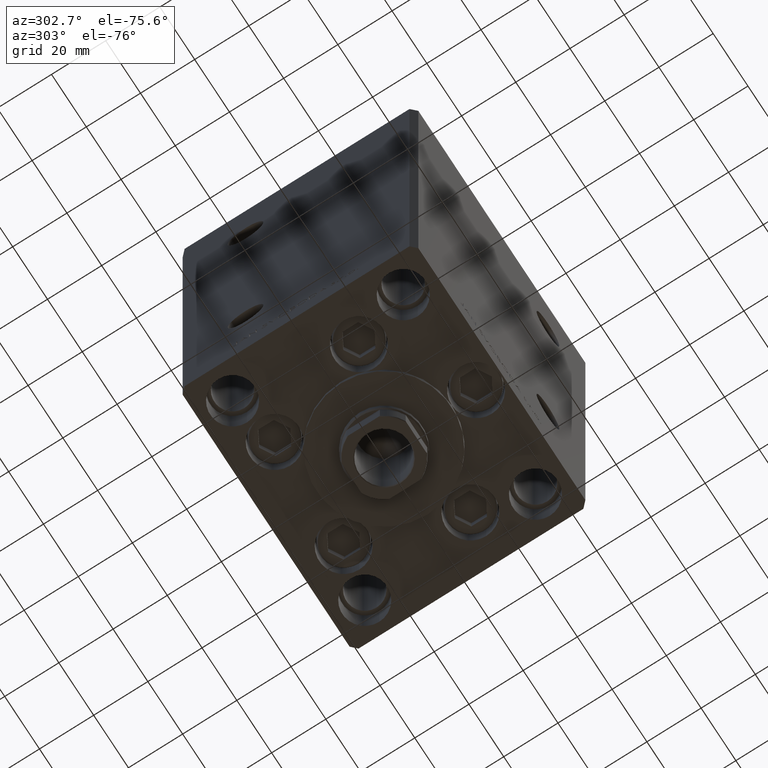
[diagram: clean part render]
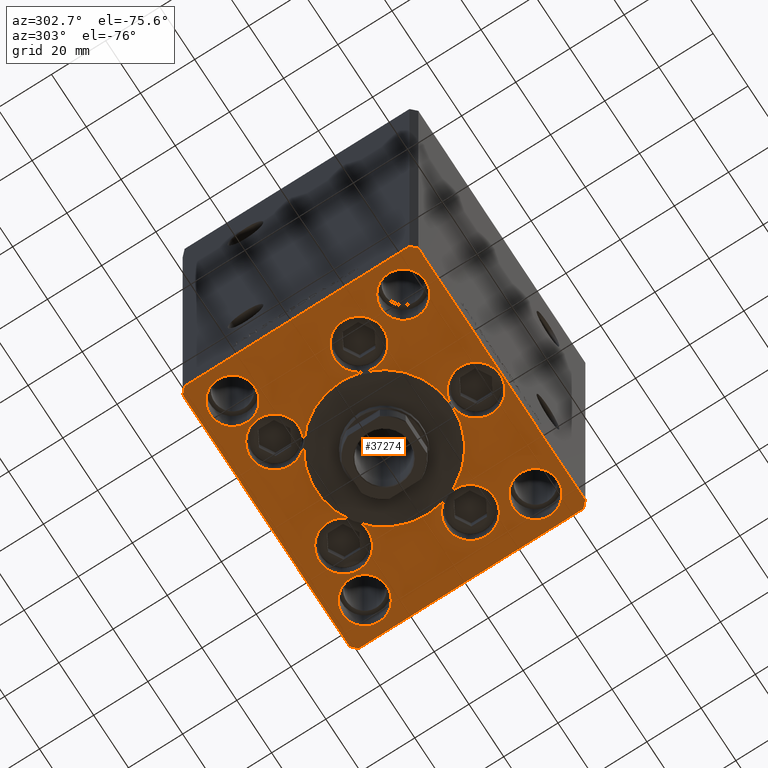
[diagram: same view with one face highlighted and labeled with its STEP entity id]
A machine part, auxiliary view. The second image highlights one B-rep face of the part: STEP entity #37274.
In plain terms, the highlighted planar face has unit normal (0, 0, -1).
Its self-contained STEP definition (entity closure, byte-faithful):
#30 = DIRECTION ( 'NONE',  ( 1.000000000000000000, 0.000000000000000000, 0.000000000000000000 ) ) ;
#83 = CIRCLE ( 'NONE', #13821, 25.00000000000000000 ) ;
#269 = CARTESIAN_POINT ( 'NONE',  ( -28.82068048781374969, 27.62499999999998934, 0.000000000000000000 ) ) ;
#766 = EDGE_CURVE ( 'NONE', #37316, #34012, #29803, .T. ) ;
#796 = CARTESIAN_POINT ( 'NONE',  ( 46.25000000000000000, 31.50000000000000000, 0.000000000000000000 ) ) ;
#1081 = VERTEX_POINT ( 'NONE', #43138 ) ;
#1189 = AXIS2_PLACEMENT_3D ( 'NONE', #8312, #4749, #8806 ) ;
#1404 = AXIS2_PLACEMENT_3D ( 'NONE', #15653, #3745, #35247 ) ;
#1420 = EDGE_CURVE ( 'NONE', #1081, #26979, #18150, .T. ) ;
#1479 = DIRECTION ( 'NONE',  ( 0.000000000000000000, 0.000000000000000000, 1.000000000000000000 ) ) ;
#1487 = CARTESIAN_POINT ( 'NONE',  ( -9.000000000000000000, -34.00000000000000000, 0.000000000000000000 ) ) ;
#1518 = EDGE_CURVE ( 'NONE', #36412, #4399, #11531, .T. ) ;
#1617 = ORIENTED_EDGE ( 'NONE', *, *, #5582, .F. ) ;
#1656 = DIRECTION ( 'NONE',  ( 0.000000000000000000, 0.000000000000000000, 1.000000000000000000 ) ) ;
#1922 = DIRECTION ( 'NONE',  ( -0.7071067811865536790, -0.7071067811865414665, 0.000000000000000000 ) ) ;
#2026 = CIRCLE ( 'NONE', #37715, 9.000000000000001776 ) ;
#2080 = DIRECTION ( 'NONE',  ( 1.000000000000000000, 0.000000000000000000, 0.000000000000000000 ) ) ;
#2179 = DIRECTION ( 'NONE',  ( 1.000000000000000000, 0.000000000000000000, 0.000000000000000000 ) ) ;
#2265 = CARTESIAN_POINT ( 'NONE',  ( -48.00000000000000000, 43.49999999999997158, 0.000000000000000000 ) ) ;
#2281 = EDGE_CURVE ( 'NONE', #42378, #2754, #37145, .T. ) ;
#2652 = ORIENTED_EDGE ( 'NONE', *, *, #22180, .F. ) ;
#2754 = VERTEX_POINT ( 'NONE', #14559 ) ;
#2789 = DIRECTION ( 'NONE',  ( 1.000000000000000000, 0.000000000000000000, 0.000000000000000000 ) ) ;
#2797 = AXIS2_PLACEMENT_3D ( 'NONE', #43185, #19555, #46756 ) ;
#3745 = DIRECTION ( 'NONE',  ( 0.000000000000000000, 0.000000000000000000, 1.000000000000000000 ) ) ;
#3759 = DIRECTION ( 'NONE',  ( 1.000000000000000000, 0.000000000000000000, 0.000000000000000000 ) ) ;
#3940 = CARTESIAN_POINT ( 'NONE',  ( -38.00000000000000711, -31.50000000000000711, 0.000000000000000000 ) ) ;
#4189 = VERTEX_POINT ( 'NONE', #32038 ) ;
#4246 = CARTESIAN_POINT ( 'NONE',  ( 0.000000000000000000, -6.938893903907228378E-15, 0.000000000000000000 ) ) ;
#4399 = VERTEX_POINT ( 'NONE', #19603 ) ;
#4632 = ORIENTED_EDGE ( 'NONE', *, *, #31259, .T. ) ;
#4666 = VERTEX_POINT ( 'NONE', #269 ) ;
#4749 = DIRECTION ( 'NONE',  ( 0.000000000000000000, 0.000000000000000000, 1.000000000000000000 ) ) ;
#4993 = AXIS2_PLACEMENT_3D ( 'NONE', #14218, #7366, #45984 ) ;
#5022 = VERTEX_POINT ( 'NONE', #20231 ) ;
#5319 = ORIENTED_EDGE ( 'NONE', *, *, #1420, .T. ) ;
#5325 = VERTEX_POINT ( 'NONE', #29015 ) ;
#5414 = EDGE_CURVE ( 'NONE', #28683, #7778, #42097, .T. ) ;
#5582 = EDGE_CURVE ( 'NONE', #6333, #33565, #23469, .T. ) ;
#5743 = CARTESIAN_POINT ( 'NONE',  ( -14.57402977045128978, 20.31249999999999289, 0.000000000000000000 ) ) ;
#5789 = VECTOR ( 'NONE', #44414, 1000.000000000000000 ) ;
#5919 = VERTEX_POINT ( 'NONE', #11626 ) ;
#6028 = AXIS2_PLACEMENT_3D ( 'NONE', #11643, #18517, #2789 ) ;
#6181 = ORIENTED_EDGE ( 'NONE', *, *, #42229, .F. ) ;
#6254 = EDGE_CURVE ( 'NONE', #7404, #15805, #38880, .T. ) ;
#6282 = CIRCLE ( 'NONE', #1404, 9.000000000000001776 ) ;
#6333 = VERTEX_POINT ( 'NONE', #25263 ) ;
#7010 = ORIENTED_EDGE ( 'NONE', *, *, #38161, .F. ) ;
#7366 = DIRECTION ( 'NONE',  ( 0.000000000000000000, 0.000000000000000000, 1.000000000000000000 ) ) ;
#7404 = VERTEX_POINT ( 'NONE', #1487 ) ;
#7778 = VERTEX_POINT ( 'NONE', #15280 ) ;
#8001 = CARTESIAN_POINT ( 'NONE',  ( -41.05550741379015989, -11.33333333333332682, 0.000000000000000000 ) ) ;
#8056 = DIRECTION ( 'NONE',  ( -0.000000000000000000, 0.000000000000000000, 1.000000000000000000 ) ) ;
#8092 = CARTESIAN_POINT ( 'NONE',  ( 10.82068048781375147, 27.62499999999998934, 0.000000000000000000 ) ) ;
#8105 = ORIENTED_EDGE ( 'NONE', *, *, #766, .F. ) ;
#8312 = CARTESIAN_POINT ( 'NONE',  ( 0.000000000000000000, -6.938893903907228378E-15, 0.000000000000000000 ) ) ;
#8509 = CIRCLE ( 'NONE', #28847, 9.000000000000001776 ) ;
#8575 = EDGE_CURVE ( 'NONE', #2754, #28466, #34120, .T. ) ;
#8684 = DIRECTION ( 'NONE',  ( 1.000000000000000000, 0.000000000000000000, 0.000000000000000000 ) ) ;
#8688 = VERTEX_POINT ( 'NONE', #17650 ) ;
#8764 = CARTESIAN_POINT ( 'NONE',  ( 47.99999999999999289, 43.50000000000000000, 0.000000000000000000 ) ) ;
#8796 = EDGE_CURVE ( 'NONE', #4189, #5325, #29287, .T. ) ;
#8806 = DIRECTION ( 'NONE',  ( 1.000000000000000000, 0.000000000000000000, 0.000000000000000000 ) ) ;
#9032 = DIRECTION ( 'NONE',  ( 0.000000000000000000, 0.000000000000000000, 1.000000000000000000 ) ) ;
#9120 = DIRECTION ( 'NONE',  ( 0.000000000000000000, 0.000000000000000000, 1.000000000000000000 ) ) ;
#9375 = CARTESIAN_POINT ( 'NONE',  ( 19.82068048781374969, 27.62499999999998934, 0.000000000000000000 ) ) ;
#9772 = CARTESIAN_POINT ( 'NONE',  ( -48.00000000000000000, 43.49999999999997158, 0.000000000000000000 ) ) ;
#10020 = DIRECTION ( 'NONE',  ( 1.000000000000000000, 0.000000000000000000, 0.000000000000000000 ) ) ;
#10934 = DIRECTION ( 'NONE',  ( 1.000000000000000000, 0.000000000000000000, 0.000000000000000000 ) ) ;
#11009 = CIRCLE ( 'NONE', #23892, 8.250000000000000000 ) ;
#11332 = ORIENTED_EDGE ( 'NONE', *, *, #21305, .F. ) ;
#11531 = LINE ( 'NONE', #47081, #45234 ) ;
#11626 = CARTESIAN_POINT ( 'NONE',  ( 25.00000000000000000, -3.877276906038844941E-15, 0.000000000000000000 ) ) ;
#11643 = CARTESIAN_POINT ( 'NONE',  ( 0.000000000000000000, -6.938893903907228378E-15, 0.000000000000000000 ) ) ;
#12031 = CARTESIAN_POINT ( 'NONE',  ( 38.00000000000000000, 31.50000000000000000, 0.000000000000000000 ) ) ;
#12063 = EDGE_LOOP ( 'NONE', ( #24391, #42480 ) ) ;
#12237 = CARTESIAN_POINT ( 'NONE',  ( 0.000000000000000000, -6.938893903907228378E-15, 0.000000000000000000 ) ) ;
#12612 = EDGE_CURVE ( 'NONE', #28466, #5919, #13825, .T. ) ;
#12825 = DIRECTION ( 'NONE',  ( 0.000000000000000000, 0.000000000000000000, 1.000000000000000000 ) ) ;
#12863 = CARTESIAN_POINT ( 'NONE',  ( 28.82068048781374969, 27.62499999999998934, 0.000000000000000000 ) ) ;
#12979 = CARTESIAN_POINT ( 'NONE',  ( 38.00000000000000711, -31.50000000000000711, 0.000000000000000000 ) ) ;
#13226 = DIRECTION ( 'NONE',  ( 0.000000000000000000, 0.000000000000000000, 1.000000000000000000 ) ) ;
#13560 = CARTESIAN_POINT ( 'NONE',  ( 0.000000000000000000, -6.938893903907228378E-15, 0.000000000000000000 ) ) ;
#13793 = DIRECTION ( 'NONE',  ( 0.000000000000000000, 0.000000000000000000, 1.000000000000000000 ) ) ;
#13821 = AXIS2_PLACEMENT_3D ( 'NONE', #13560, #1656, #40498 ) ;
#13823 = LINE ( 'NONE', #9772, #32540 ) ;
#13825 = CIRCLE ( 'NONE', #27649, 25.00000000000000000 ) ;
#14208 = ORIENTED_EDGE ( 'NONE', *, *, #23958, .F. ) ;
#14218 = CARTESIAN_POINT ( 'NONE',  ( 0.000000000000000000, -34.00000000000000000, 0.000000000000000000 ) ) ;
#14279 = CARTESIAN_POINT ( 'NONE',  ( 14.57402977045128623, 20.31249999999998579, 0.000000000000000000 ) ) ;
#14452 = ORIENTED_EDGE ( 'NONE', *, *, #1518, .T. ) ;
#14527 = AXIS2_PLACEMENT_3D ( 'NONE', #47370, #47619, #31901 ) ;
#14559 = CARTESIAN_POINT ( 'NONE',  ( 0.000000000000000000, -25.00000000000000000, 0.000000000000000000 ) ) ;
#14644 = EDGE_CURVE ( 'NONE', #5022, #36412, #36899, .T. ) ;
#14870 = CARTESIAN_POINT ( 'NONE',  ( -46.25000000000000000, 31.50000000000000000, 0.000000000000000000 ) ) ;
#14881 = LINE ( 'NONE', #49943, #43182 ) ;
#15091 = DIRECTION ( 'NONE',  ( 1.000000000000000000, 0.000000000000000000, 0.000000000000000000 ) ) ;
#15104 = CARTESIAN_POINT ( 'NONE',  ( 9.000000000000000000, -34.00000000000000000, 0.000000000000000000 ) ) ;
#15280 = CARTESIAN_POINT ( 'NONE',  ( 46.25000000000000000, -31.50000000000000711, 0.000000000000000000 ) ) ;
#15331 = EDGE_CURVE ( 'NONE', #26979, #5022, #25636, .T. ) ;
#15653 = CARTESIAN_POINT ( 'NONE',  ( 32.05550741379015989, -11.33333333333332860, 0.000000000000000000 ) ) ;
#15805 = VERTEX_POINT ( 'NONE', #15104 ) ;
#15843 = EDGE_CURVE ( 'NONE', #35532, #24311, #41521, .T. ) ;
#15941 = DIRECTION ( 'NONE',  ( 0.000000000000000000, 0.000000000000000000, 1.000000000000000000 ) ) ;
#16088 = ORIENTED_EDGE ( 'NONE', *, *, #15331, .T. ) ;
#16356 = DIRECTION ( 'NONE',  ( 0.000000000000000000, 0.000000000000000000, 1.000000000000000000 ) ) ;
#16438 = CIRCLE ( 'NONE', #24552, 9.000000000000000000 ) ;
#16486 = DIRECTION ( 'NONE',  ( 0.000000000000000000, 0.000000000000000000, 1.000000000000000000 ) ) ;
#16581 = CARTESIAN_POINT ( 'NONE',  ( 19.82068048781374969, 27.62499999999998934, 0.000000000000000000 ) ) ;
#16634 = CARTESIAN_POINT ( 'NONE',  ( 38.00000000000000000, 31.50000000000000000, 0.000000000000000000 ) ) ;
#16869 = ORIENTED_EDGE ( 'NONE', *, *, #21077, .F. ) ;
#17073 = DIRECTION ( 'NONE',  ( 0.000000000000000000, 0.000000000000000000, 1.000000000000000000 ) ) ;
#17560 = EDGE_CURVE ( 'NONE', #4399, #31655, #14881, .T. ) ;
#17650 = CARTESIAN_POINT ( 'NONE',  ( -25.00000000000000000, -6.938893903907228378E-15, 0.000000000000000000 ) ) ;
#17687 = CARTESIAN_POINT ( 'NONE',  ( -23.57022603955158502, -8.333333333333332149, 0.000000000000000000 ) ) ;
#18081 = CIRCLE ( 'NONE', #35124, 9.000000000000000000 ) ;
#18150 = LINE ( 'NONE', #18402, #29844 ) ;
#18268 = AXIS2_PLACEMENT_3D ( 'NONE', #22200, #13793, #26277 ) ;
#18274 = ORIENTED_EDGE ( 'NONE', *, *, #17560, .T. ) ;
#18384 = EDGE_CURVE ( 'NONE', #40203, #44998, #18081, .T. ) ;
#18402 = CARTESIAN_POINT ( 'NONE',  ( -50.00000000000000711, 41.49999999999999289, 0.000000000000000000 ) ) ;
#18517 = DIRECTION ( 'NONE',  ( 0.000000000000000000, 0.000000000000000000, 1.000000000000000000 ) ) ;
#18557 = EDGE_CURVE ( 'NONE', #44998, #4666, #16438, .T. ) ;
#18561 = ORIENTED_EDGE ( 'NONE', *, *, #48841, .F. ) ;
#18589 = DIRECTION ( 'NONE',  ( -0.7071067811865512365, 0.7071067811865439090, 0.000000000000000000 ) ) ;
#18972 = AXIS2_PLACEMENT_3D ( 'NONE', #43110, #8056, #3759 ) ;
#19495 = AXIS2_PLACEMENT_3D ( 'NONE', #3940, #20418, #31881 ) ;
#19555 = DIRECTION ( 'NONE',  ( 0.000000000000000000, 0.000000000000000000, 1.000000000000000000 ) ) ;
#19603 = CARTESIAN_POINT ( 'NONE',  ( 50.00000000000000000, -41.49999999999992895, 0.000000000000000000 ) ) ;
#19663 = CIRCLE ( 'NONE', #39953, 9.000000000000000000 ) ;
#19931 = CARTESIAN_POINT ( 'NONE',  ( -38.00000000000000000, 31.50000000000000000, 0.000000000000000000 ) ) ;
#19950 = ORIENTED_EDGE ( 'NONE', *, *, #8796, .F. ) ;
#20007 = CARTESIAN_POINT ( 'NONE',  ( -32.05550741379015989, -11.33333333333332860, 0.000000000000000000 ) ) ;
#20061 = CARTESIAN_POINT ( 'NONE',  ( -38.00000000000000000, 31.50000000000000000, 0.000000000000000000 ) ) ;
#20193 = AXIS2_PLACEMENT_3D ( 'NONE', #48046, #13226, #2080 ) ;
#20231 = CARTESIAN_POINT ( 'NONE',  ( -48.00000000000000711, -43.50000000000002842, 0.000000000000000000 ) ) ;
#20418 = DIRECTION ( 'NONE',  ( 0.000000000000000000, 0.000000000000000000, 1.000000000000000000 ) ) ;
#20441 = AXIS2_PLACEMENT_3D ( 'NONE', #30894, #46367, #23757 ) ;
#20518 = DIRECTION ( 'NONE',  ( 1.000000000000000000, 0.000000000000000000, 0.000000000000000000 ) ) ;
#20694 = CIRCLE ( 'NONE', #18268, 8.250000000000000000 ) ;
#21077 = EDGE_CURVE ( 'NONE', #2754, #7404, #36017, .T. ) ;
#21305 = EDGE_CURVE ( 'NONE', #24311, #34204, #25462, .T. ) ;
#21882 = EDGE_LOOP ( 'NONE', ( #50232, #25145, #11332, #26973, #41318, #35876, #14208, #1617, #18561, #37077, #38224, #33850, #16869, #26350, #38756, #7010, #43704, #33481, #6181, #23820, #38301, #36889 ) ) ;
#22134 = CARTESIAN_POINT ( 'NONE',  ( -10.82068048781375147, 27.62499999999998934, 0.000000000000000000 ) ) ;
#22180 = EDGE_CURVE ( 'NONE', #34012, #37316, #49821, .T. ) ;
#22200 = CARTESIAN_POINT ( 'NONE',  ( -38.00000000000000711, -31.50000000000000711, 0.000000000000000000 ) ) ;
#22501 = DIRECTION ( 'NONE',  ( 1.000000000000000000, 0.000000000000000000, 0.000000000000000000 ) ) ;
#23063 = FACE_BOUND ( 'NONE', #35323, .T. ) ;
#23172 = AXIS2_PLACEMENT_3D ( 'NONE', #19931, #16356, #31895 ) ;
#23276 = DIRECTION ( 'NONE',  ( -1.000000000000000000, -2.891205793294678326E-16, 0.000000000000000000 ) ) ;
#23469 = CIRCLE ( 'NONE', #24301, 9.000000000000001776 ) ;
#23472 = DIRECTION ( 'NONE',  ( 0.7071067811865474617, 0.7071067811865474617, 0.000000000000000000 ) ) ;
#23711 = EDGE_CURVE ( 'NONE', #5325, #4189, #20694, .T. ) ;
#23757 = DIRECTION ( 'NONE',  ( 1.000000000000000000, 0.000000000000000000, 0.000000000000000000 ) ) ;
#23820 = ORIENTED_EDGE ( 'NONE', *, *, #34302, .F. ) ;
#23892 = AXIS2_PLACEMENT_3D ( 'NONE', #20061, #16486, #35583 ) ;
#23958 = EDGE_CURVE ( 'NONE', #33565, #28466, #8509, .T. ) ;
#24301 = AXIS2_PLACEMENT_3D ( 'NONE', #35088, #46989, #30 ) ;
#24311 = VERTEX_POINT ( 'NONE', #12863 ) ;
#24391 = ORIENTED_EDGE ( 'NONE', *, *, #40791, .F. ) ;
#24546 = DIRECTION ( 'NONE',  ( 1.000000000000000000, 0.000000000000000000, 0.000000000000000000 ) ) ;
#24552 = AXIS2_PLACEMENT_3D ( 'NONE', #33179, #29624, #2179 ) ;
#25145 = ORIENTED_EDGE ( 'NONE', *, *, #45182, .F. ) ;
#25185 = CARTESIAN_POINT ( 'NONE',  ( 0.000000000000000000, -6.938893903907228378E-15, 0.000000000000000000 ) ) ;
#25263 = CARTESIAN_POINT ( 'NONE',  ( 23.05550741379015633, -11.33333333333332682, 0.000000000000000000 ) ) ;
#25462 = CIRCLE ( 'NONE', #38437, 8.999999999999998224 ) ;
#25465 = DIRECTION ( 'NONE',  ( 1.000000000000000000, 1.156482317317871331E-15, 0.000000000000000000 ) ) ;
#25604 = CIRCLE ( 'NONE', #36981, 8.999999999999998224 ) ;
#25607 = AXIS2_PLACEMENT_3D ( 'NONE', #12979, #35641, #8684 ) ;
#25636 = LINE ( 'NONE', #32752, #5789 ) ;
#25706 = DIRECTION ( 'NONE',  ( 0.000000000000000000, 0.000000000000000000, 1.000000000000000000 ) ) ;
#25801 = DIRECTION ( 'NONE',  ( 8.360113137237620037E-17, -1.000000000000000000, 0.000000000000000000 ) ) ;
#26012 = CIRCLE ( 'NONE', #4993, 9.000000000000000000 ) ;
#26247 = LINE ( 'NONE', #30312, #42266 ) ;
#26277 = DIRECTION ( 'NONE',  ( 1.000000000000000000, 0.000000000000000000, 0.000000000000000000 ) ) ;
#26350 = ORIENTED_EDGE ( 'NONE', *, *, #2281, .F. ) ;
#26367 = VECTOR ( 'NONE', #23276, 1000.000000000000000 ) ;
#26640 = AXIS2_PLACEMENT_3D ( 'NONE', #25185, #44243, #48295 ) ;
#26750 = EDGE_CURVE ( 'NONE', #48003, #1081, #13823, .T. ) ;
#26973 = ORIENTED_EDGE ( 'NONE', *, *, #15843, .F. ) ;
#26979 = VERTEX_POINT ( 'NONE', #39968 ) ;
#27191 = CARTESIAN_POINT ( 'NONE',  ( 50.00000000000000000, 41.50000000000000711, 0.000000000000000000 ) ) ;
#27385 = FACE_BOUND ( 'NONE', #40281, .T. ) ;
#27649 = AXIS2_PLACEMENT_3D ( 'NONE', #49920, #46617, #22501 ) ;
#27931 = AXIS2_PLACEMENT_3D ( 'NONE', #34331, #49796, #10934 ) ;
#28268 = EDGE_CURVE ( 'NONE', #15805, #2754, #26012, .T. ) ;
#28368 = DIRECTION ( 'NONE',  ( 1.000000000000000000, 0.000000000000000000, 0.000000000000000000 ) ) ;
#28466 = VERTEX_POINT ( 'NONE', #40339 ) ;
#28683 = VERTEX_POINT ( 'NONE', #35253 ) ;
#28847 = AXIS2_PLACEMENT_3D ( 'NONE', #33851, #25706, #49065 ) ;
#29015 = CARTESIAN_POINT ( 'NONE',  ( -29.75000000000000711, -31.50000000000000711, 0.000000000000000000 ) ) ;
#29190 = EDGE_CURVE ( 'NONE', #35532, #40203, #83, .T. ) ;
#29287 = CIRCLE ( 'NONE', #19495, 8.250000000000000000 ) ;
#29624 = DIRECTION ( 'NONE',  ( 0.000000000000000000, 0.000000000000000000, 1.000000000000000000 ) ) ;
#29803 = CIRCLE ( 'NONE', #41959, 8.250000000000000000 ) ;
#29844 = VECTOR ( 'NONE', #25801, 1000.000000000000000 ) ;
#30312 = CARTESIAN_POINT ( 'NONE',  ( 50.00000000000000000, 41.50000000000000711, 0.000000000000000000 ) ) ;
#30460 = ORIENTED_EDGE ( 'NONE', *, *, #42561, .T. ) ;
#30894 = CARTESIAN_POINT ( 'NONE',  ( 19.82068048781374969, 27.62499999999998934, 0.000000000000000000 ) ) ;
#31259 = EDGE_CURVE ( 'NONE', #31655, #45393, #26247, .T. ) ;
#31624 = DIRECTION ( 'NONE',  ( 0.000000000000000000, 0.000000000000000000, 1.000000000000000000 ) ) ;
#31655 = VERTEX_POINT ( 'NONE', #27191 ) ;
#31836 = DIRECTION ( 'NONE',  ( 1.000000000000000000, 0.000000000000000000, 0.000000000000000000 ) ) ;
#31869 = DIRECTION ( 'NONE',  ( 1.000000000000000000, 0.000000000000000000, 0.000000000000000000 ) ) ;
#31881 = DIRECTION ( 'NONE',  ( 1.000000000000000000, 0.000000000000000000, 0.000000000000000000 ) ) ;
#31895 = DIRECTION ( 'NONE',  ( 1.000000000000000000, 0.000000000000000000, 0.000000000000000000 ) ) ;
#31901 = DIRECTION ( 'NONE',  ( 1.000000000000000000, 0.000000000000000000, 0.000000000000000000 ) ) ;
#32038 = CARTESIAN_POINT ( 'NONE',  ( -46.25000000000000711, -31.50000000000000711, 0.000000000000000000 ) ) ;
#32168 = DIRECTION ( 'NONE',  ( 0.000000000000000000, 0.000000000000000000, 1.000000000000000000 ) ) ;
#32386 = PLANE ( 'NONE',  #18972 ) ;
#32540 = VECTOR ( 'NONE', #1922, 1000.000000000000000 ) ;
#32624 = CARTESIAN_POINT ( 'NONE',  ( 48.00000000000000711, -43.49999999999992184, 0.000000000000000000 ) ) ;
#32752 = CARTESIAN_POINT ( 'NONE',  ( -50.00000000000000000, -41.50000000000004263, 0.000000000000000000 ) ) ;
#33179 = CARTESIAN_POINT ( 'NONE',  ( -19.82068048781374969, 27.62499999999998934, 0.000000000000000000 ) ) ;
#33481 = ORIENTED_EDGE ( 'NONE', *, *, #37791, .F. ) ;
#33565 = VERTEX_POINT ( 'NONE', #49213 ) ;
#33639 = CIRCLE ( 'NONE', #1189, 25.00000000000000000 ) ;
#33850 = ORIENTED_EDGE ( 'NONE', *, *, #6254, .F. ) ;
#33851 = CARTESIAN_POINT ( 'NONE',  ( 32.05550741379015989, -11.33333333333332860, 0.000000000000000000 ) ) ;
#34012 = VERTEX_POINT ( 'NONE', #796 ) ;
#34120 = CIRCLE ( 'NONE', #40560, 25.00000000000000000 ) ;
#34204 = VERTEX_POINT ( 'NONE', #8092 ) ;
#34302 = EDGE_CURVE ( 'NONE', #4666, #40203, #19663, .T. ) ;
#34331 = CARTESIAN_POINT ( 'NONE',  ( -32.05550741379015989, -11.33333333333332860, 0.000000000000000000 ) ) ;
#34764 = ORIENTED_EDGE ( 'NONE', *, *, #23711, .F. ) ;
#35088 = CARTESIAN_POINT ( 'NONE',  ( 32.05550741379015989, -11.33333333333332860, 0.000000000000000000 ) ) ;
#35124 = AXIS2_PLACEMENT_3D ( 'NONE', #47645, #12825, #28368 ) ;
#35247 = DIRECTION ( 'NONE',  ( 1.000000000000000000, 0.000000000000000000, 0.000000000000000000 ) ) ;
#35253 = CARTESIAN_POINT ( 'NONE',  ( 29.75000000000001066, -31.50000000000000711, 0.000000000000000000 ) ) ;
#35323 = EDGE_LOOP ( 'NONE', ( #34764, #19950 ) ) ;
#35529 = DIRECTION ( 'NONE',  ( 1.000000000000000000, 0.000000000000000000, 0.000000000000000000 ) ) ;
#35532 = VERTEX_POINT ( 'NONE', #14279 ) ;
#35583 = DIRECTION ( 'NONE',  ( 1.000000000000000000, 0.000000000000000000, 0.000000000000000000 ) ) ;
#35641 = DIRECTION ( 'NONE',  ( 0.000000000000000000, 0.000000000000000000, 1.000000000000000000 ) ) ;
#35797 = VECTOR ( 'NONE', #25465, 1000.000000000000000 ) ;
#35876 = ORIENTED_EDGE ( 'NONE', *, *, #12612, .F. ) ;
#35983 = CARTESIAN_POINT ( 'NONE',  ( 0.000000000000000000, -34.00000000000000000, 0.000000000000000000 ) ) ;
#36017 = CIRCLE ( 'NONE', #44924, 9.000000000000000000 ) ;
#36412 = VERTEX_POINT ( 'NONE', #32624 ) ;
#36716 = CARTESIAN_POINT ( 'NONE',  ( -29.75000000000000000, 31.50000000000000000, 0.000000000000000000 ) ) ;
#36803 = EDGE_CURVE ( 'NONE', #40065, #42378, #42486, .T. ) ;
#36889 = ORIENTED_EDGE ( 'NONE', *, *, #18384, .F. ) ;
#36899 = LINE ( 'NONE', #48569, #35797 ) ;
#36953 = CIRCLE ( 'NONE', #25607, 8.249999999999992895 ) ;
#36981 = AXIS2_PLACEMENT_3D ( 'NONE', #9375, #9120, #44183 ) ;
#37077 = ORIENTED_EDGE ( 'NONE', *, *, #8575, .F. ) ;
#37145 = CIRCLE ( 'NONE', #26640, 25.00000000000000000 ) ;
#37274 = ADVANCED_FACE ( 'NONE', ( #46923, #27385, #42857, #23063, #47852, #38554 ), #32386, .T. ) ;
#37316 = VERTEX_POINT ( 'NONE', #49123 ) ;
#37715 = AXIS2_PLACEMENT_3D ( 'NONE', #20007, #15941, #35529 ) ;
#37791 = EDGE_CURVE ( 'NONE', #8688, #42378, #33639, .T. ) ;
#37957 = EDGE_CURVE ( 'NONE', #5919, #35532, #39293, .T. ) ;
#38161 = EDGE_CURVE ( 'NONE', #40309, #40065, #45797, .T. ) ;
#38224 = ORIENTED_EDGE ( 'NONE', *, *, #28268, .F. ) ;
#38301 = ORIENTED_EDGE ( 'NONE', *, *, #18557, .F. ) ;
#38437 = AXIS2_PLACEMENT_3D ( 'NONE', #16581, #17073, #31869 ) ;
#38554 = FACE_OUTER_BOUND ( 'NONE', #40618, .T. ) ;
#38564 = CARTESIAN_POINT ( 'NONE',  ( 47.99999999999999289, 43.50000000000000000, 0.000000000000000000 ) ) ;
#38578 = CIRCLE ( 'NONE', #23172, 8.250000000000000000 ) ;
#38756 = ORIENTED_EDGE ( 'NONE', *, *, #36803, .F. ) ;
#38880 = CIRCLE ( 'NONE', #14527, 9.000000000000000000 ) ;
#39039 = DIRECTION ( 'NONE',  ( 0.000000000000000000, 0.000000000000000000, 1.000000000000000000 ) ) ;
#39203 = EDGE_CURVE ( 'NONE', #42378, #40309, #2026, .T. ) ;
#39293 = CIRCLE ( 'NONE', #44156, 25.00000000000000000 ) ;
#39569 = VERTEX_POINT ( 'NONE', #36716 ) ;
#39953 = AXIS2_PLACEMENT_3D ( 'NONE', #43647, #1479, #20518 ) ;
#39968 = CARTESIAN_POINT ( 'NONE',  ( -50.00000000000000000, -41.50000000000004263, 0.000000000000000000 ) ) ;
#40065 = VERTEX_POINT ( 'NONE', #49831 ) ;
#40203 = VERTEX_POINT ( 'NONE', #5743 ) ;
#40281 = EDGE_LOOP ( 'NONE', ( #2652, #8105 ) ) ;
#40309 = VERTEX_POINT ( 'NONE', #8001 ) ;
#40339 = CARTESIAN_POINT ( 'NONE',  ( 23.57022603955158502, -8.333333333333332149, 0.000000000000000000 ) ) ;
#40498 = DIRECTION ( 'NONE',  ( 1.000000000000000000, 0.000000000000000000, 0.000000000000000000 ) ) ;
#40506 = EDGE_CURVE ( 'NONE', #48373, #39569, #38578, .T. ) ;
#40560 = AXIS2_PLACEMENT_3D ( 'NONE', #4246, #39039, #46913 ) ;
#40618 = EDGE_LOOP ( 'NONE', ( #16088, #40928, #14452, #18274, #4632, #30460, #47435, #5319 ) ) ;
#40791 = EDGE_CURVE ( 'NONE', #7778, #28683, #36953, .T. ) ;
#40907 = CIRCLE ( 'NONE', #6028, 25.00000000000000000 ) ;
#40928 = ORIENTED_EDGE ( 'NONE', *, *, #14644, .T. ) ;
#41144 = EDGE_CURVE ( 'NONE', #39569, #48373, #11009, .T. ) ;
#41318 = ORIENTED_EDGE ( 'NONE', *, *, #37957, .F. ) ;
#41521 = CIRCLE ( 'NONE', #20441, 8.999999999999998224 ) ;
#41696 = AXIS2_PLACEMENT_3D ( 'NONE', #12031, #31624, #15091 ) ;
#41959 = AXIS2_PLACEMENT_3D ( 'NONE', #16634, #32168, #10020 ) ;
#42097 = CIRCLE ( 'NONE', #20193, 8.249999999999992895 ) ;
#42229 = EDGE_CURVE ( 'NONE', #40203, #8688, #40907, .T. ) ;
#42266 = VECTOR ( 'NONE', #18589, 999.9999999999998863 ) ;
#42378 = VERTEX_POINT ( 'NONE', #17687 ) ;
#42480 = ORIENTED_EDGE ( 'NONE', *, *, #5414, .F. ) ;
#42486 = CIRCLE ( 'NONE', #27931, 9.000000000000001776 ) ;
#42561 = EDGE_CURVE ( 'NONE', #45393, #48003, #46643, .T. ) ;
#42857 = FACE_BOUND ( 'NONE', #46369, .T. ) ;
#43110 = CARTESIAN_POINT ( 'NONE',  ( 0.000000000000000000, 0.000000000000000000, 0.000000000000000000 ) ) ;
#43138 = CARTESIAN_POINT ( 'NONE',  ( -50.00000000000000711, 41.49999999999999289, 0.000000000000000000 ) ) ;
#43182 = VECTOR ( 'NONE', #45893, 1000.000000000000000 ) ;
#43185 = CARTESIAN_POINT ( 'NONE',  ( -32.05550741379015989, -11.33333333333332860, 0.000000000000000000 ) ) ;
#43647 = CARTESIAN_POINT ( 'NONE',  ( -19.82068048781374969, 27.62499999999998934, 0.000000000000000000 ) ) ;
#43704 = ORIENTED_EDGE ( 'NONE', *, *, #39203, .F. ) ;
#44156 = AXIS2_PLACEMENT_3D ( 'NONE', #12237, #46314, #31836 ) ;
#44183 = DIRECTION ( 'NONE',  ( 1.000000000000000000, 0.000000000000000000, 0.000000000000000000 ) ) ;
#44243 = DIRECTION ( 'NONE',  ( 0.000000000000000000, 0.000000000000000000, 1.000000000000000000 ) ) ;
#44414 = DIRECTION ( 'NONE',  ( 0.7071067811865487940, -0.7071067811865463515, 0.000000000000000000 ) ) ;
#44449 = ORIENTED_EDGE ( 'NONE', *, *, #41144, .F. ) ;
#44924 = AXIS2_PLACEMENT_3D ( 'NONE', #35983, #9032, #24546 ) ;
#44998 = VERTEX_POINT ( 'NONE', #22134 ) ;
#45182 = EDGE_CURVE ( 'NONE', #34204, #35532, #25604, .T. ) ;
#45234 = VECTOR ( 'NONE', #23472, 1000.000000000000114 ) ;
#45393 = VERTEX_POINT ( 'NONE', #38564 ) ;
#45797 = CIRCLE ( 'NONE', #2797, 9.000000000000001776 ) ;
#45893 = DIRECTION ( 'NONE',  ( 0.000000000000000000, 1.000000000000000000, 0.000000000000000000 ) ) ;
#45984 = DIRECTION ( 'NONE',  ( 1.000000000000000000, 0.000000000000000000, 0.000000000000000000 ) ) ;
#46314 = DIRECTION ( 'NONE',  ( 0.000000000000000000, 0.000000000000000000, 1.000000000000000000 ) ) ;
#46367 = DIRECTION ( 'NONE',  ( 0.000000000000000000, 0.000000000000000000, 1.000000000000000000 ) ) ;
#46369 = EDGE_LOOP ( 'NONE', ( #44449, #49754 ) ) ;
#46617 = DIRECTION ( 'NONE',  ( 0.000000000000000000, 0.000000000000000000, 1.000000000000000000 ) ) ;
#46643 = LINE ( 'NONE', #8764, #26367 ) ;
#46756 = DIRECTION ( 'NONE',  ( 1.000000000000000000, 0.000000000000000000, 0.000000000000000000 ) ) ;
#46913 = DIRECTION ( 'NONE',  ( 1.000000000000000000, 0.000000000000000000, 0.000000000000000000 ) ) ;
#46923 = FACE_BOUND ( 'NONE', #21882, .T. ) ;
#46989 = DIRECTION ( 'NONE',  ( 0.000000000000000000, 0.000000000000000000, 1.000000000000000000 ) ) ;
#47081 = CARTESIAN_POINT ( 'NONE',  ( 48.00000000000000711, -43.49999999999992184, 0.000000000000000000 ) ) ;
#47370 = CARTESIAN_POINT ( 'NONE',  ( 0.000000000000000000, -34.00000000000000000, 0.000000000000000000 ) ) ;
#47435 = ORIENTED_EDGE ( 'NONE', *, *, #26750, .T. ) ;
#47619 = DIRECTION ( 'NONE',  ( 0.000000000000000000, 0.000000000000000000, 1.000000000000000000 ) ) ;
#47645 = CARTESIAN_POINT ( 'NONE',  ( -19.82068048781374969, 27.62499999999998934, 0.000000000000000000 ) ) ;
#47852 = FACE_BOUND ( 'NONE', #12063, .T. ) ;
#48003 = VERTEX_POINT ( 'NONE', #2265 ) ;
#48046 = CARTESIAN_POINT ( 'NONE',  ( 38.00000000000000711, -31.50000000000000711, 0.000000000000000000 ) ) ;
#48295 = DIRECTION ( 'NONE',  ( 1.000000000000000000, 0.000000000000000000, 0.000000000000000000 ) ) ;
#48373 = VERTEX_POINT ( 'NONE', #14870 ) ;
#48569 = CARTESIAN_POINT ( 'NONE',  ( -48.00000000000000711, -43.50000000000002842, 0.000000000000000000 ) ) ;
#48841 = EDGE_CURVE ( 'NONE', #28466, #6333, #6282, .T. ) ;
#49065 = DIRECTION ( 'NONE',  ( 1.000000000000000000, 0.000000000000000000, 0.000000000000000000 ) ) ;
#49123 = CARTESIAN_POINT ( 'NONE',  ( 29.74999999999999645, 31.50000000000000000, 0.000000000000000000 ) ) ;
#49213 = CARTESIAN_POINT ( 'NONE',  ( 41.05550741379015989, -11.33333333333332860, 0.000000000000000000 ) ) ;
#49754 = ORIENTED_EDGE ( 'NONE', *, *, #40506, .F. ) ;
#49796 = DIRECTION ( 'NONE',  ( 0.000000000000000000, 0.000000000000000000, 1.000000000000000000 ) ) ;
#49821 = CIRCLE ( 'NONE', #41696, 8.250000000000000000 ) ;
#49831 = CARTESIAN_POINT ( 'NONE',  ( -23.05550741379015633, -11.33333333333332860, 0.000000000000000000 ) ) ;
#49920 = CARTESIAN_POINT ( 'NONE',  ( 0.000000000000000000, -6.938893903907228378E-15, 0.000000000000000000 ) ) ;
#49943 = CARTESIAN_POINT ( 'NONE',  ( 50.00000000000000000, -41.49999999999992895, 0.000000000000000000 ) ) ;
#50232 = ORIENTED_EDGE ( 'NONE', *, *, #29190, .F. ) ;